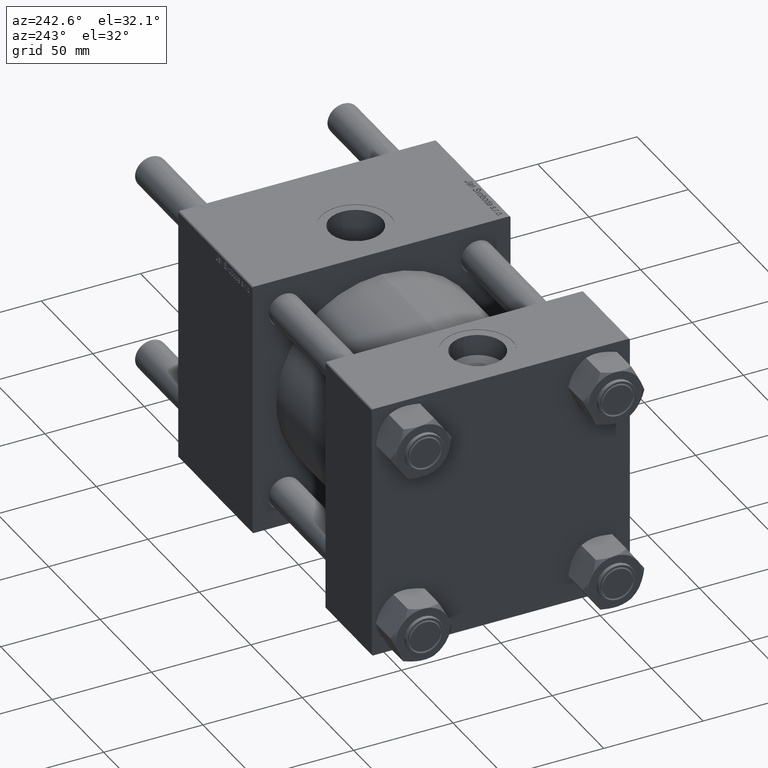
[diagram: clean part render]
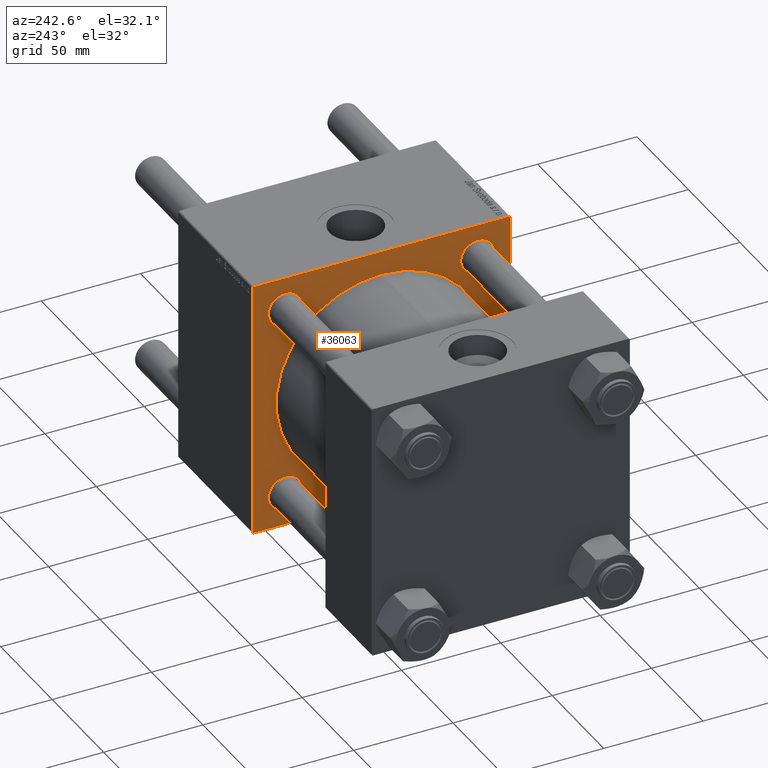
[diagram: same view with one face highlighted and labeled with its STEP entity id]
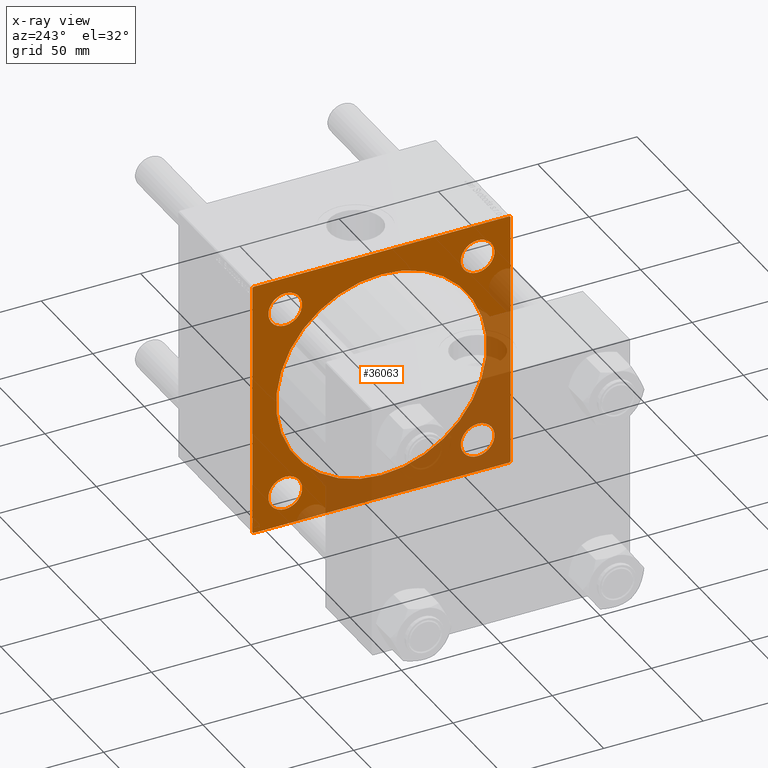
[diagram: x-ray of the same camera — body ghosted, the highlighted face saturated]
A machine part, auxiliary view. The second image highlights one B-rep face of the part: STEP entity #36063.
The next image is the same camera in x-ray: the body ghosted, the highlighted face saturated — about 37% of this face is hidden behind the body in this view.
In plain terms, the highlighted planar face has unit normal (-1, 0, 0).
Its self-contained STEP definition (entity closure, byte-faithful):
#230 = AXIS2_PLACEMENT_3D ( 'NONE', #2806, #29940, #48117 ) ;
#354 = AXIS2_PLACEMENT_3D ( 'NONE', #7056, #25253, #57149 ) ;
#1035 = ORIENTED_EDGE ( 'NONE', *, *, #53230, .T. ) ;
#1058 = ORIENTED_EDGE ( 'NONE', *, *, #29126, .T. ) ;
#1081 = CARTESIAN_POINT ( 'NONE',  ( 115.9999999999999858, -64.99999999999998579, 65.00000000000000000 ) ) ;
#1289 = VERTEX_POINT ( 'NONE', #18191 ) ;
#1887 = EDGE_CURVE ( 'NONE', #1289, #15040, #42090, .T. ) ;
#2103 = DIRECTION ( 'NONE',  ( 1.000000000000000000, -0.000000000000000000, 0.000000000000000000 ) ) ;
#2384 = AXIS2_PLACEMENT_3D ( 'NONE', #51922, #29862, #10792 ) ;
#2759 = AXIS2_PLACEMENT_3D ( 'NONE', #10876, #34406, #29060 ) ;
#2798 = VERTEX_POINT ( 'NONE', #8473 ) ;
#2806 = CARTESIAN_POINT ( 'NONE',  ( 115.9999999999999858, -2.602085213965210642E-15, 0.000000000000000000 ) ) ;
#3125 = CARTESIAN_POINT ( 'NONE',  ( 115.9999999999999858, 65.00000000000002842, 64.50000000000001421 ) ) ;
#3444 = VERTEX_POINT ( 'NONE', #15272 ) ;
#3915 = CARTESIAN_POINT ( 'NONE',  ( 115.9999999999999858, 64.74999999999822364, -64.75000000000180478 ) ) ;
#4165 = EDGE_CURVE ( 'NONE', #56767, #25088, #38377, .T. ) ;
#5705 = CARTESIAN_POINT ( 'NONE',  ( 115.9999999999999858, -48.44999999999999574, 48.45000000000003126 ) ) ;
#5771 = EDGE_CURVE ( 'NONE', #36877, #51168, #8914, .T. ) ;
#5813 = CARTESIAN_POINT ( 'NONE',  ( 115.9999999999999858, -48.44999999999999574, -48.45000000000003126 ) ) ;
#7020 = CARTESIAN_POINT ( 'NONE',  ( 115.9999999999999858, 48.45000000000000995, -56.94999999999996732 ) ) ;
#7056 = CARTESIAN_POINT ( 'NONE',  ( 115.9999999999999858, 48.45000000000000995, 48.45000000000001705 ) ) ;
#7505 = PLANE ( 'NONE',  #2384 ) ;
#7518 = ORIENTED_EDGE ( 'NONE', *, *, #21134, .T. ) ;
#7832 = VERTEX_POINT ( 'NONE', #17600 ) ;
#8113 = CARTESIAN_POINT ( 'NONE',  ( 115.9999999999999858, -48.44999999999999574, 56.94999999999998153 ) ) ;
#8393 = LINE ( 'NONE', #39696, #17838 ) ;
#8473 = CARTESIAN_POINT ( 'NONE',  ( 115.9999999999999858, 65.00000000000002842, -64.50000000000001421 ) ) ;
#8849 = DIRECTION ( 'NONE',  ( 0.000000000000000000, 0.000000000000000000, 1.000000000000000000 ) ) ;
#8914 = CIRCLE ( 'NONE', #354, 8.499999999999952038 ) ;
#8962 = CARTESIAN_POINT ( 'NONE',  ( 115.9999999999999858, 48.45000000000000995, 56.94999999999996732 ) ) ;
#8964 = DIRECTION ( 'NONE',  ( -0.000000000000000000, 0.7071067811865376918, 0.7071067811865574537 ) ) ;
#10018 = ORIENTED_EDGE ( 'NONE', *, *, #47902, .T. ) ;
#10119 = EDGE_CURVE ( 'NONE', #10659, #2798, #50122, .T. ) ;
#10151 = VERTEX_POINT ( 'NONE', #8113 ) ;
#10653 = VERTEX_POINT ( 'NONE', #11490 ) ;
#10659 = VERTEX_POINT ( 'NONE', #3125 ) ;
#10792 = DIRECTION ( 'NONE',  ( -0.000000000000000000, 0.000000000000000000, 1.000000000000000000 ) ) ;
#10876 = CARTESIAN_POINT ( 'NONE',  ( 115.9999999999999858, -2.602085213965210642E-15, 0.000000000000000000 ) ) ;
#11461 = ORIENTED_EDGE ( 'NONE', *, *, #10119, .T. ) ;
#11490 = CARTESIAN_POINT ( 'NONE',  ( 115.9999999999999858, -64.50000000000008527, 65.00000000000000000 ) ) ;
#12927 = ORIENTED_EDGE ( 'NONE', *, *, #21263, .T. ) ;
#13325 = CARTESIAN_POINT ( 'NONE',  ( 115.9999999999999858, 64.50000000000005684, 65.00000000000001421 ) ) ;
#13406 = CARTESIAN_POINT ( 'NONE',  ( 115.9999999999999858, -48.44999999999999574, -56.94999999999998153 ) ) ;
#13608 = DIRECTION ( 'NONE',  ( 1.000000000000000000, -0.000000000000000000, 0.000000000000000000 ) ) ;
#14273 = ORIENTED_EDGE ( 'NONE', *, *, #32758, .F. ) ;
#15040 = VERTEX_POINT ( 'NONE', #29123 ) ;
#15180 = DIRECTION ( 'NONE',  ( 0.000000000000000000, 0.7071067811865279218, -0.7071067811865671127 ) ) ;
#15272 = CARTESIAN_POINT ( 'NONE',  ( 115.9999999999999858, -64.50000000000002842, -65.00000000000001421 ) ) ;
#15418 = ORIENTED_EDGE ( 'NONE', *, *, #1887, .T. ) ;
#16446 = FACE_BOUND ( 'NONE', #50225, .T. ) ;
#17352 = DIRECTION ( 'NONE',  ( 0.000000000000000000, 0.000000000000000000, -1.000000000000000000 ) ) ;
#17600 = CARTESIAN_POINT ( 'NONE',  ( 115.9999999999999858, -64.99999999999998579, -64.50000000000002842 ) ) ;
#17625 = CARTESIAN_POINT ( 'NONE',  ( 115.9999999999999858, 48.45000000000000995, -39.95000000000005969 ) ) ;
#17797 = AXIS2_PLACEMENT_3D ( 'NONE', #5705, #22730, #27774 ) ;
#17838 = VECTOR ( 'NONE', #8964, 999.9999999999998863 ) ;
#17938 = EDGE_LOOP ( 'NONE', ( #1035, #7518, #14273, #10018, #32646, #43310, #11461, #12927 ) ) ;
#18191 = CARTESIAN_POINT ( 'NONE',  ( 115.9999999999999858, 3.888542821515762466E-15, -53.00000000000000711 ) ) ;
#18463 = DIRECTION ( 'NONE',  ( 0.000000000000000000, 0.000000000000000000, 1.000000000000000000 ) ) ;
#18759 = DIRECTION ( 'NONE',  ( 1.000000000000000000, -0.000000000000000000, 0.000000000000000000 ) ) ;
#20135 = VECTOR ( 'NONE', #50025, 1000.000000000000000 ) ;
#20258 = CARTESIAN_POINT ( 'NONE',  ( 115.9999999999999858, 48.45000000000000995, 39.95000000000005969 ) ) ;
#20812 = VERTEX_POINT ( 'NONE', #27147 ) ;
#21134 = EDGE_CURVE ( 'NONE', #3444, #7832, #45259, .T. ) ;
#21263 = EDGE_CURVE ( 'NONE', #2798, #36516, #26873, .T. ) ;
#21645 = EDGE_LOOP ( 'NONE', ( #23678, #26630 ) ) ;
#21981 = VECTOR ( 'NONE', #15180, 1000.000000000000000 ) ;
#22211 = DIRECTION ( 'NONE',  ( 0.000000000000000000, 0.000000000000000000, 1.000000000000000000 ) ) ;
#22712 = DIRECTION ( 'NONE',  ( 0.000000000000000000, -1.000000000000000000, -2.135044278125300850E-16 ) ) ;
#22730 = DIRECTION ( 'NONE',  ( 1.000000000000000000, -0.000000000000000000, 0.000000000000000000 ) ) ;
#23106 = AXIS2_PLACEMENT_3D ( 'NONE', #53972, #18759, #18463 ) ;
#23247 = CARTESIAN_POINT ( 'NONE',  ( 115.9999999999999858, 64.75000000000181899, 64.74999999999822364 ) ) ;
#23678 = ORIENTED_EDGE ( 'NONE', *, *, #27463, .T. ) ;
#23736 = LINE ( 'NONE', #1081, #43151 ) ;
#23762 = VERTEX_POINT ( 'NONE', #13325 ) ;
#24510 = FACE_BOUND ( 'NONE', #51438, .T. ) ;
#24539 = EDGE_CURVE ( 'NONE', #23762, #10659, #33354, .T. ) ;
#25088 = VERTEX_POINT ( 'NONE', #54414 ) ;
#25253 = DIRECTION ( 'NONE',  ( 1.000000000000000000, -0.000000000000000000, 0.000000000000000000 ) ) ;
#25341 = CIRCLE ( 'NONE', #26274, 8.499999999999952038 ) ;
#25424 = EDGE_LOOP ( 'NONE', ( #45919, #15418 ) ) ;
#26007 = LINE ( 'NONE', #53424, #43740 ) ;
#26166 = DIRECTION ( 'NONE',  ( 1.000000000000000000, -0.000000000000000000, 0.000000000000000000 ) ) ;
#26172 = ORIENTED_EDGE ( 'NONE', *, *, #45947, .T. ) ;
#26274 = AXIS2_PLACEMENT_3D ( 'NONE', #34437, #44858, #22211 ) ;
#26630 = ORIENTED_EDGE ( 'NONE', *, *, #58574, .T. ) ;
#26755 = DIRECTION ( 'NONE',  ( 0.000000000000000000, 0.000000000000000000, 1.000000000000000000 ) ) ;
#26873 = LINE ( 'NONE', #3915, #52488 ) ;
#27147 = CARTESIAN_POINT ( 'NONE',  ( 115.9999999999999858, -48.44999999999999574, 39.95000000000007390 ) ) ;
#27463 = EDGE_CURVE ( 'NONE', #47919, #28389, #54427, .T. ) ;
#27774 = DIRECTION ( 'NONE',  ( 0.000000000000000000, 0.000000000000000000, 1.000000000000000000 ) ) ;
#27824 = CIRCLE ( 'NONE', #23106, 8.499999999999952038 ) ;
#28389 = VERTEX_POINT ( 'NONE', #7020 ) ;
#28716 = AXIS2_PLACEMENT_3D ( 'NONE', #55317, #13608, #8849 ) ;
#28765 = DIRECTION ( 'NONE',  ( 0.000000000000000000, 0.000000000000000000, 1.000000000000000000 ) ) ;
#29060 = DIRECTION ( 'NONE',  ( 0.000000000000000000, 0.000000000000000000, -1.000000000000000000 ) ) ;
#29123 = CARTESIAN_POINT ( 'NONE',  ( 115.9999999999999858, -2.602085213965210642E-15, 53.00000000000000711 ) ) ;
#29126 = EDGE_CURVE ( 'NONE', #25088, #56767, #27824, .T. ) ;
#29459 = CARTESIAN_POINT ( 'NONE',  ( 115.9999999999999858, -48.44999999999999574, 48.45000000000003126 ) ) ;
#29567 = FACE_BOUND ( 'NONE', #25424, .T. ) ;
#29862 = DIRECTION ( 'NONE',  ( -1.000000000000000000, 0.000000000000000000, -0.000000000000000000 ) ) ;
#29880 = ORIENTED_EDGE ( 'NONE', *, *, #5771, .T. ) ;
#29940 = DIRECTION ( 'NONE',  ( 1.000000000000000000, 0.000000000000000000, 0.000000000000000000 ) ) ;
#30131 = DIRECTION ( 'NONE',  ( 0.000000000000000000, 0.000000000000000000, 1.000000000000000000 ) ) ;
#31271 = CARTESIAN_POINT ( 'NONE',  ( 115.9999999999999858, -64.75000000000180478, -64.74999999999820943 ) ) ;
#32636 = AXIS2_PLACEMENT_3D ( 'NONE', #5813, #47246, #28765 ) ;
#32646 = ORIENTED_EDGE ( 'NONE', *, *, #57693, .F. ) ;
#32758 = EDGE_CURVE ( 'NONE', #58709, #7832, #23736, .T. ) ;
#33354 = LINE ( 'NONE', #23247, #21981 ) ;
#33728 = FACE_BOUND ( 'NONE', #21645, .T. ) ;
#33888 = ORIENTED_EDGE ( 'NONE', *, *, #39187, .T. ) ;
#34406 = DIRECTION ( 'NONE',  ( 1.000000000000000000, 0.000000000000000000, 0.000000000000000000 ) ) ;
#34437 = CARTESIAN_POINT ( 'NONE',  ( 115.9999999999999858, 48.45000000000000995, 48.45000000000001705 ) ) ;
#34618 = FACE_BOUND ( 'NONE', #43039, .T. ) ;
#36063 = ADVANCED_FACE ( 'NONE', ( #24510, #16446, #33728, #34618, #29567, #48334 ), #7505, .T. ) ;
#36516 = VERTEX_POINT ( 'NONE', #54635 ) ;
#36679 = AXIS2_PLACEMENT_3D ( 'NONE', #38154, #2103, #30131 ) ;
#36877 = VERTEX_POINT ( 'NONE', #20258 ) ;
#37629 = AXIS2_PLACEMENT_3D ( 'NONE', #29459, #26166, #26755 ) ;
#37650 = CIRCLE ( 'NONE', #36679, 8.499999999999952038 ) ;
#38154 = CARTESIAN_POINT ( 'NONE',  ( 115.9999999999999858, 48.45000000000000995, -48.45000000000001705 ) ) ;
#38240 = CARTESIAN_POINT ( 'NONE',  ( 115.9999999999999858, 65.00000000000002842, 65.00000000000001421 ) ) ;
#38377 = CIRCLE ( 'NONE', #32636, 8.499999999999952038 ) ;
#38768 = EDGE_CURVE ( 'NONE', #10151, #20812, #40565, .T. ) ;
#39187 = EDGE_CURVE ( 'NONE', #51168, #36877, #25341, .T. ) ;
#39696 = CARTESIAN_POINT ( 'NONE',  ( 115.9999999999999858, -64.75000000000093792, 64.74999999999914735 ) ) ;
#39872 = CIRCLE ( 'NONE', #2759, 53.00000000000000711 ) ;
#40565 = CIRCLE ( 'NONE', #37629, 8.499999999999952038 ) ;
#41158 = DIRECTION ( 'NONE',  ( -0.000000000000000000, -0.7071067811865671127, -0.7071067811865279218 ) ) ;
#41335 = ORIENTED_EDGE ( 'NONE', *, *, #38768, .T. ) ;
#42090 = CIRCLE ( 'NONE', #230, 53.00000000000000711 ) ;
#43039 = EDGE_LOOP ( 'NONE', ( #1058, #47632 ) ) ;
#43151 = VECTOR ( 'NONE', #46671, 1000.000000000000000 ) ;
#43310 = ORIENTED_EDGE ( 'NONE', *, *, #24539, .T. ) ;
#43490 = CIRCLE ( 'NONE', #17797, 8.499999999999952038 ) ;
#43740 = VECTOR ( 'NONE', #22712, 1000.000000000000000 ) ;
#44858 = DIRECTION ( 'NONE',  ( 1.000000000000000000, -0.000000000000000000, 0.000000000000000000 ) ) ;
#45259 = LINE ( 'NONE', #31271, #20135 ) ;
#45919 = ORIENTED_EDGE ( 'NONE', *, *, #51951, .T. ) ;
#45947 = EDGE_CURVE ( 'NONE', #20812, #10151, #43490, .T. ) ;
#46370 = CARTESIAN_POINT ( 'NONE',  ( 115.9999999999999858, -64.99999999999998579, 64.50000000000008527 ) ) ;
#46671 = DIRECTION ( 'NONE',  ( 0.000000000000000000, 0.000000000000000000, -1.000000000000000000 ) ) ;
#47246 = DIRECTION ( 'NONE',  ( 1.000000000000000000, -0.000000000000000000, 0.000000000000000000 ) ) ;
#47632 = ORIENTED_EDGE ( 'NONE', *, *, #4165, .T. ) ;
#47902 = EDGE_CURVE ( 'NONE', #58709, #10653, #8393, .T. ) ;
#47919 = VERTEX_POINT ( 'NONE', #17625 ) ;
#48117 = DIRECTION ( 'NONE',  ( 0.000000000000000000, 0.000000000000000000, -1.000000000000000000 ) ) ;
#48334 = FACE_OUTER_BOUND ( 'NONE', #17938, .T. ) ;
#50025 = DIRECTION ( 'NONE',  ( 0.000000000000000000, -0.7071067811865279218, 0.7071067811865672237 ) ) ;
#50122 = LINE ( 'NONE', #54296, #56670 ) ;
#50225 = EDGE_LOOP ( 'NONE', ( #33888, #29880 ) ) ;
#51168 = VERTEX_POINT ( 'NONE', #8962 ) ;
#51438 = EDGE_LOOP ( 'NONE', ( #41335, #26172 ) ) ;
#51894 = VECTOR ( 'NONE', #56456, 1000.000000000000000 ) ;
#51922 = CARTESIAN_POINT ( 'NONE',  ( 115.9999999999999858, 0.000000000000000000, 0.000000000000000000 ) ) ;
#51951 = EDGE_CURVE ( 'NONE', #15040, #1289, #39872, .T. ) ;
#52488 = VECTOR ( 'NONE', #41158, 1000.000000000000000 ) ;
#53230 = EDGE_CURVE ( 'NONE', #36516, #3444, #26007, .T. ) ;
#53424 = CARTESIAN_POINT ( 'NONE',  ( 115.9999999999999858, 65.00000000000002842, -64.99999999999998579 ) ) ;
#53972 = CARTESIAN_POINT ( 'NONE',  ( 115.9999999999999858, -48.44999999999999574, -48.45000000000003126 ) ) ;
#54296 = CARTESIAN_POINT ( 'NONE',  ( 115.9999999999999858, 65.00000000000002842, 65.00000000000001421 ) ) ;
#54414 = CARTESIAN_POINT ( 'NONE',  ( 115.9999999999999858, -48.44999999999999574, -39.95000000000007390 ) ) ;
#54427 = CIRCLE ( 'NONE', #28716, 8.499999999999952038 ) ;
#54635 = CARTESIAN_POINT ( 'NONE',  ( 115.9999999999999858, 64.50000000000002842, -64.99999999999998579 ) ) ;
#55317 = CARTESIAN_POINT ( 'NONE',  ( 115.9999999999999858, 48.45000000000000995, -48.45000000000001705 ) ) ;
#56456 = DIRECTION ( 'NONE',  ( 0.000000000000000000, -1.000000000000000000, -1.067522139062650425E-16 ) ) ;
#56670 = VECTOR ( 'NONE', #17352, 1000.000000000000000 ) ;
#56767 = VERTEX_POINT ( 'NONE', #13406 ) ;
#57052 = LINE ( 'NONE', #38240, #51894 ) ;
#57149 = DIRECTION ( 'NONE',  ( 0.000000000000000000, 0.000000000000000000, 1.000000000000000000 ) ) ;
#57693 = EDGE_CURVE ( 'NONE', #23762, #10653, #57052, .T. ) ;
#58574 = EDGE_CURVE ( 'NONE', #28389, #47919, #37650, .T. ) ;
#58709 = VERTEX_POINT ( 'NONE', #46370 ) ;